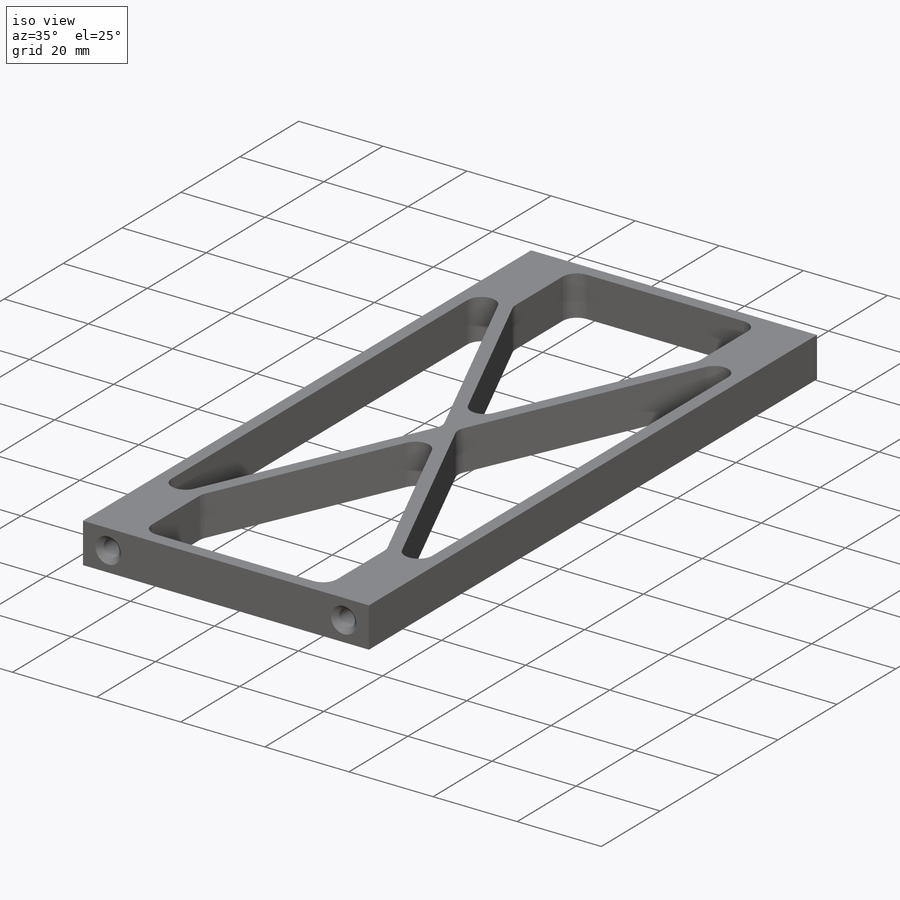
[diagram: iso view]
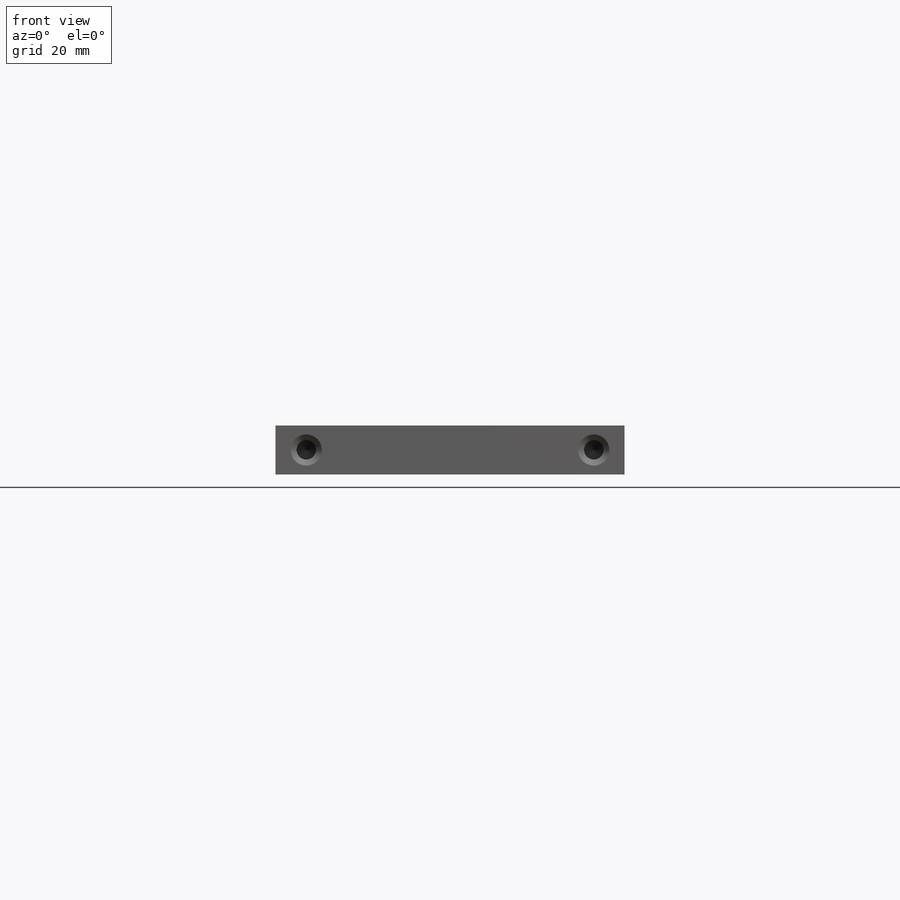
[diagram: front view]
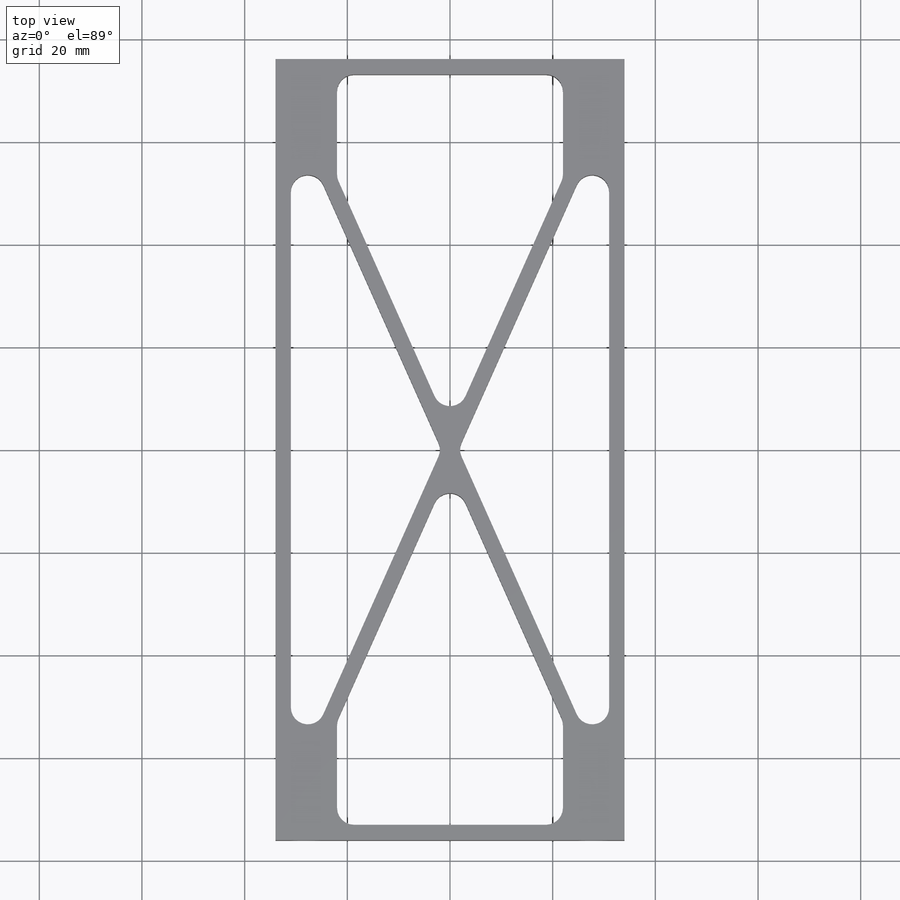
[diagram: top view]
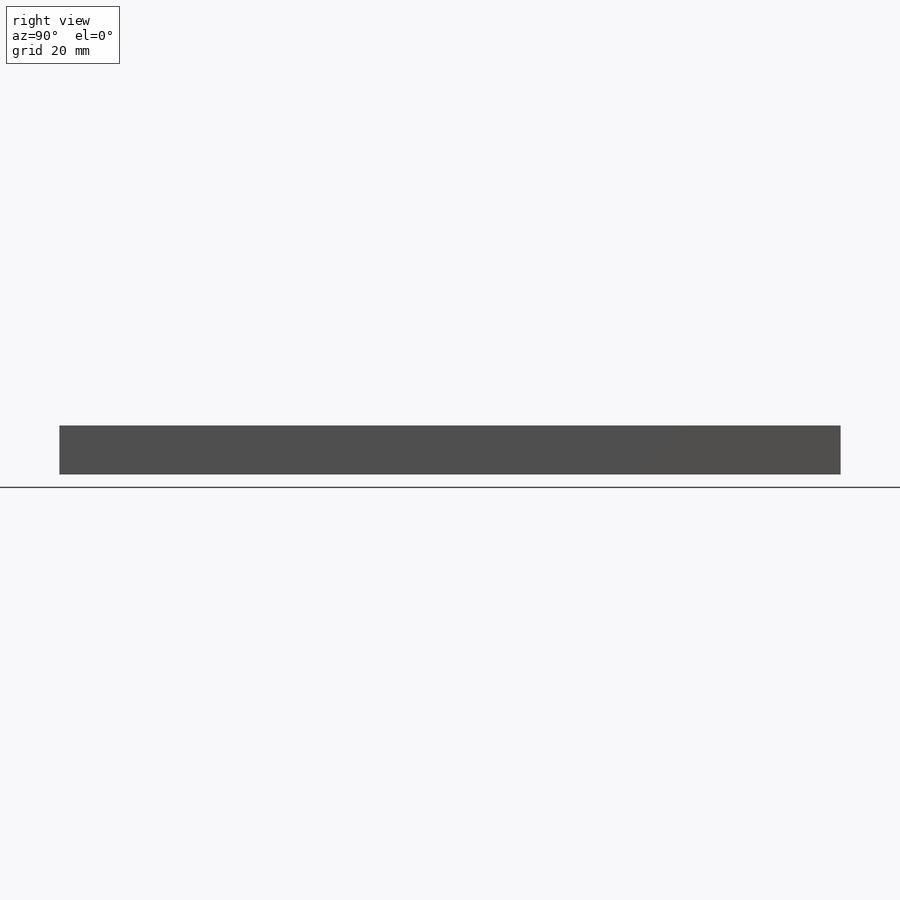
[diagram: right view]
SOLIDWORKS PART (.sldprt)
format: sldprt  version: not decoded by parser v0  size: 299,008 bytes
history: native  units: mm
features: sketch x4, mirror x3, thread x2, material x1, extrude x1, cut_extrude x1, fillet x1, hole x1 (+11 scaffold rows collapsed)
feature tree (25):
  scaffold x11  (default folders/planes/origin — collapsed)
  material  "6061-T6 (SS)"
  sketch  "Sketch1"  dims[D1=68.0mm D2=~152.181091mm]
  extrude  "Boss-Extrude1"  Depth=9.525mm
  sketch  "Sketch5"  dims[D1=3.0mm D2=3.0mm D3=3.0mm D4=3.0mm D5=12.0mm]
  cut_extrude  "Cut-Extrude2"  [1 undecoded]
  mirror  "Mirror2"
  mirror  "Mirror3"
  fillet  "Fillet1"  Radius=3.3mm
  hole  "#10-24 Tapped Hole1"  Diameter=3.7973mm Depth=14.95mm
  sketch  "Sketch3"  dims[D1=56.0mm]
  sketch  "Sketch2"  dims[hole-wizard template sketch: 46 standard entries collapsed; hole parameters above]
  thread  "Hole Thread1"  Diameter=9.65mm  [1 undecoded]
  thread  "Hole Thread2"  Diameter=9.65mm  [1 undecoded]
  mirror  "Mirror1"
decode coverage: 9 of 13 modeling features carry decoded parameters
note: ~ marks probable driven/reference dimensions
note: 3 parameter values undecoded
note: suppression state not decoded; provenance and decode notes live in map.json
